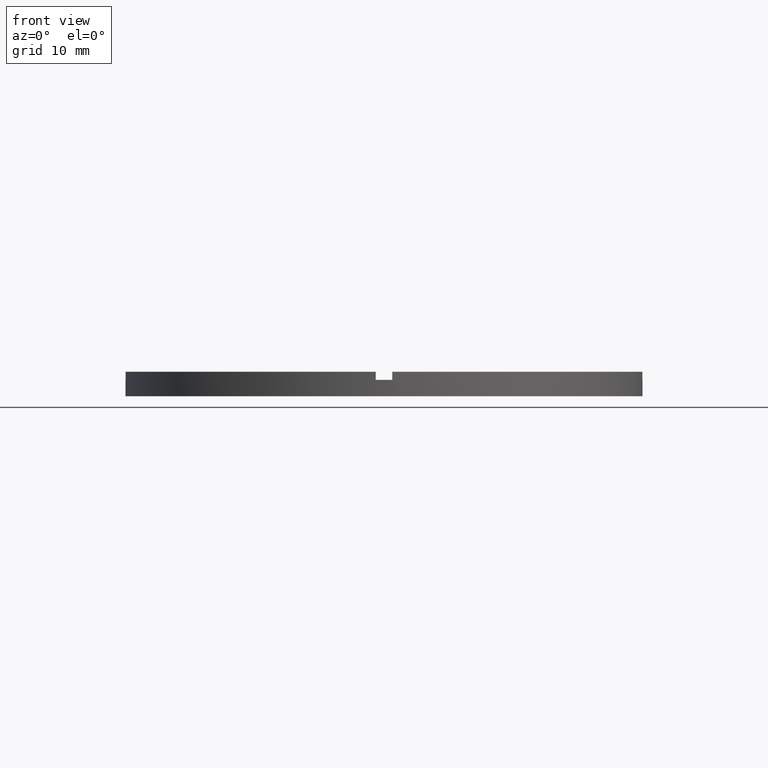
[diagram: clean part render]
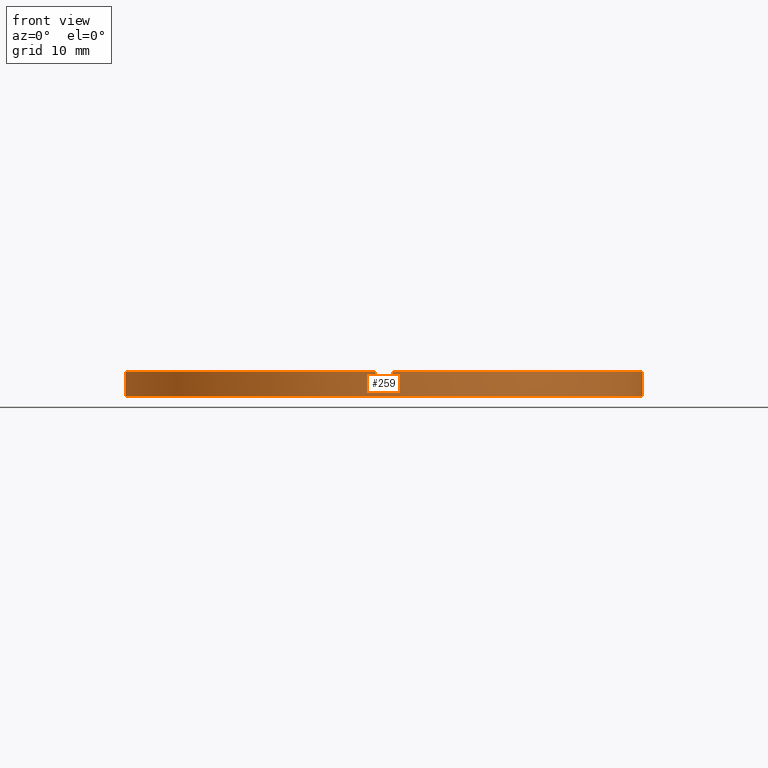
[diagram: same view with one face highlighted and labeled with its STEP entity id]
A machine part, front view. The second image highlights one B-rep face of the part: STEP entity #259.
In plain terms, the highlighted cylindrical surface (partial cylindrical patch) has radius 31.5 mm, axis along (-0, -0, -1).
Its self-contained STEP definition (entity closure, byte-faithful):
#5 = CARTESIAN_POINT ( 'NONE',  ( 0.000000000000000000, 0.000000000000000000, 3.000000000000000000 ) ) ;
#6 = VERTEX_POINT ( 'NONE', #61 ) ;
#10 = AXIS2_PLACEMENT_3D ( 'NONE', #551, #651, #600 ) ;
#26 = ORIENTED_EDGE ( 'NONE', *, *, #323, .T. ) ;
#30 = CARTESIAN_POINT ( 'NONE',  ( 31.50000000000000000, 3.857637417314162689E-15, 3.000000000000000000 ) ) ;
#32 = EDGE_LOOP ( 'NONE', ( #280, #421, #26, #686, #472, #673, #662, #244, #536, #490, #548, #159 ) ) ;
#42 = VERTEX_POINT ( 'NONE', #262 ) ;
#47 = LINE ( 'NONE', #315, #203 ) ;
#56 = DIRECTION ( 'NONE',  ( 0.000000000000000000, 0.000000000000000000, 1.000000000000000000 ) ) ;
#61 = CARTESIAN_POINT ( 'NONE',  ( 31.50000000000000000, 3.857637417314162689E-15, 2.000000000000000000 ) ) ;
#74 = DIRECTION ( 'NONE',  ( 1.000000000000000000, 0.000000000000000000, 0.000000000000000000 ) ) ;
#77 = DIRECTION ( 'NONE',  ( 1.000000000000000000, 0.000000000000000000, 0.000000000000000000 ) ) ;
#86 = DIRECTION ( 'NONE',  ( 0.000000000000000000, 0.000000000000000000, 1.000000000000000000 ) ) ;
#87 = AXIS2_PLACEMENT_3D ( 'NONE', #5, #618, #624 ) ;
#93 = CARTESIAN_POINT ( 'NONE',  ( 0.9999999999998386846, -31.48412298286233479, 3.000000000000000000 ) ) ;
#102 = CARTESIAN_POINT ( 'NONE',  ( 31.48412298286232414, -1.000000000000158540, 3.000000000000000000 ) ) ;
#127 = EDGE_CURVE ( 'NONE', #699, #612, #349, .T. ) ;
#147 = VERTEX_POINT ( 'NONE', #199 ) ;
#148 = CIRCLE ( 'NONE', #476, 31.50000000000000000 ) ;
#156 = CARTESIAN_POINT ( 'NONE',  ( -1.000000000000161426, -31.48412298286232414, 3.000000000000000000 ) ) ;
#159 = ORIENTED_EDGE ( 'NONE', *, *, #575, .T. ) ;
#163 = DIRECTION ( 'NONE',  ( 1.000000000000000000, 0.000000000000000000, 0.000000000000000000 ) ) ;
#165 = CIRCLE ( 'NONE', #625, 31.50000000000000000 ) ;
#168 = VECTOR ( 'NONE', #488, 1000.000000000000000 ) ;
#172 = LINE ( 'NONE', #93, #660 ) ;
#176 = VERTEX_POINT ( 'NONE', #248 ) ;
#177 = CARTESIAN_POINT ( 'NONE',  ( -31.50000000000000000, 0.000000000000000000, 3.000000000000000000 ) ) ;
#199 = CARTESIAN_POINT ( 'NONE',  ( 0.9999999999998386846, -31.48412298286233479, 3.000000000000000000 ) ) ;
#203 = VECTOR ( 'NONE', #317, 1000.000000000000000 ) ;
#217 = CARTESIAN_POINT ( 'NONE',  ( 31.48412298286232414, -1.000000000000158540, 3.000000000000000000 ) ) ;
#224 = CARTESIAN_POINT ( 'NONE',  ( -31.50000000000000000, 0.000000000000000000, 2.000000000000000000 ) ) ;
#226 = DIRECTION ( 'NONE',  ( 0.000000000000000000, 0.000000000000000000, 1.000000000000000000 ) ) ;
#232 = EDGE_CURVE ( 'NONE', #257, #42, #47, .T. ) ;
#244 = ORIENTED_EDGE ( 'NONE', *, *, #375, .F. ) ;
#248 = CARTESIAN_POINT ( 'NONE',  ( 31.50000000000000000, 3.857637417314162689E-15, 0.000000000000000000 ) ) ;
#257 = VERTEX_POINT ( 'NONE', #494 ) ;
#259 = ADVANCED_FACE ( 'NONE', ( #764 ), #768, .T. ) ;
#262 = CARTESIAN_POINT ( 'NONE',  ( -31.48412298286233124, -1.000000000000025757, 2.000000000000000000 ) ) ;
#278 = VERTEX_POINT ( 'NONE', #217 ) ;
#280 = ORIENTED_EDGE ( 'NONE', *, *, #500, .F. ) ;
#315 = CARTESIAN_POINT ( 'NONE',  ( -31.48412298286233124, -1.000000000000025757, 3.000000000000000000 ) ) ;
#317 = DIRECTION ( 'NONE',  ( -0.000000000000000000, -0.000000000000000000, -1.000000000000000000 ) ) ;
#323 = EDGE_CURVE ( 'NONE', #437, #278, #646, .T. ) ;
#325 = EDGE_CURVE ( 'NONE', #147, #695, #172, .T. ) ;
#327 = DIRECTION ( 'NONE',  ( 0.000000000000000000, 0.000000000000000000, 1.000000000000000000 ) ) ;
#329 = AXIS2_PLACEMENT_3D ( 'NONE', #579, #56, #163 ) ;
#333 = CARTESIAN_POINT ( 'NONE',  ( 31.48412298286232414, -1.000000000000158540, 2.000000000000000000 ) ) ;
#349 = LINE ( 'NONE', #177, #740 ) ;
#350 = AXIS2_PLACEMENT_3D ( 'NONE', #615, #226, #519 ) ;
#375 = EDGE_CURVE ( 'NONE', #257, #514, #432, .T. ) ;
#394 = CIRCLE ( 'NONE', #329, 31.50000000000000000 ) ;
#413 = CIRCLE ( 'NONE', #350, 31.50000000000000000 ) ;
#421 = ORIENTED_EDGE ( 'NONE', *, *, #545, .F. ) ;
#432 = CIRCLE ( 'NONE', #87, 31.50000000000000000 ) ;
#437 = VERTEX_POINT ( 'NONE', #333 ) ;
#439 = LINE ( 'NONE', #30, #672 ) ;
#449 = CARTESIAN_POINT ( 'NONE',  ( -1.000000000000161426, -31.48412298286232414, 3.000000000000000000 ) ) ;
#457 = LINE ( 'NONE', #156, #708 ) ;
#472 = ORIENTED_EDGE ( 'NONE', *, *, #325, .T. ) ;
#476 = AXIS2_PLACEMENT_3D ( 'NONE', #512, #571, #677 ) ;
#488 = DIRECTION ( 'NONE',  ( 0.000000000000000000, 0.000000000000000000, 1.000000000000000000 ) ) ;
#490 = ORIENTED_EDGE ( 'NONE', *, *, #630, .F. ) ;
#491 = DIRECTION ( 'NONE',  ( -0.000000000000000000, -0.000000000000000000, -1.000000000000000000 ) ) ;
#494 = CARTESIAN_POINT ( 'NONE',  ( -31.48412298286233124, -1.000000000000025757, 3.000000000000000000 ) ) ;
#500 = EDGE_CURVE ( 'NONE', #6, #176, #439, .T. ) ;
#512 = CARTESIAN_POINT ( 'NONE',  ( 0.000000000000000000, 0.000000000000000000, 2.000000000000000000 ) ) ;
#514 = VERTEX_POINT ( 'NONE', #449 ) ;
#515 = EDGE_CURVE ( 'NONE', #147, #278, #413, .T. ) ;
#519 = DIRECTION ( 'NONE',  ( 1.000000000000000000, 0.000000000000000000, 0.000000000000000000 ) ) ;
#536 = ORIENTED_EDGE ( 'NONE', *, *, #232, .T. ) ;
#545 = EDGE_CURVE ( 'NONE', #437, #6, #165, .T. ) ;
#548 = ORIENTED_EDGE ( 'NONE', *, *, #127, .T. ) ;
#551 = CARTESIAN_POINT ( 'NONE',  ( 0.000000000000000000, 0.000000000000000000, 3.000000000000000000 ) ) ;
#571 = DIRECTION ( 'NONE',  ( -0.000000000000000000, 0.000000000000000000, 1.000000000000000000 ) ) ;
#575 = EDGE_CURVE ( 'NONE', #612, #176, #394, .T. ) ;
#577 = DIRECTION ( 'NONE',  ( -0.000000000000000000, -0.000000000000000000, -1.000000000000000000 ) ) ;
#578 = DIRECTION ( 'NONE',  ( 0.000000000000000000, 0.000000000000000000, 1.000000000000000000 ) ) ;
#579 = CARTESIAN_POINT ( 'NONE',  ( 0.000000000000000000, 0.000000000000000000, 0.000000000000000000 ) ) ;
#600 = DIRECTION ( 'NONE',  ( -1.000000000000000000, 0.000000000000000000, 0.000000000000000000 ) ) ;
#607 = CARTESIAN_POINT ( 'NONE',  ( -1.000000000000161426, -31.48412298286232414, 2.000000000000000000 ) ) ;
#612 = VERTEX_POINT ( 'NONE', #663 ) ;
#615 = CARTESIAN_POINT ( 'NONE',  ( 0.000000000000000000, 0.000000000000000000, 3.000000000000000000 ) ) ;
#618 = DIRECTION ( 'NONE',  ( 0.000000000000000000, 0.000000000000000000, 1.000000000000000000 ) ) ;
#624 = DIRECTION ( 'NONE',  ( 1.000000000000000000, 0.000000000000000000, 0.000000000000000000 ) ) ;
#625 = AXIS2_PLACEMENT_3D ( 'NONE', #751, #86, #74 ) ;
#630 = EDGE_CURVE ( 'NONE', #699, #42, #704, .T. ) ;
#646 = LINE ( 'NONE', #102, #168 ) ;
#651 = DIRECTION ( 'NONE',  ( -0.000000000000000000, -0.000000000000000000, -1.000000000000000000 ) ) ;
#660 = VECTOR ( 'NONE', #687, 1000.000000000000000 ) ;
#661 = AXIS2_PLACEMENT_3D ( 'NONE', #688, #327, #77 ) ;
#662 = ORIENTED_EDGE ( 'NONE', *, *, #765, .T. ) ;
#663 = CARTESIAN_POINT ( 'NONE',  ( -31.50000000000000000, 0.000000000000000000, 0.000000000000000000 ) ) ;
#670 = EDGE_CURVE ( 'NONE', #676, #695, #148, .T. ) ;
#672 = VECTOR ( 'NONE', #577, 1000.000000000000000 ) ;
#673 = ORIENTED_EDGE ( 'NONE', *, *, #670, .F. ) ;
#676 = VERTEX_POINT ( 'NONE', #607 ) ;
#677 = DIRECTION ( 'NONE',  ( 1.000000000000000000, 0.000000000000000000, 0.000000000000000000 ) ) ;
#686 = ORIENTED_EDGE ( 'NONE', *, *, #515, .F. ) ;
#687 = DIRECTION ( 'NONE',  ( -0.000000000000000000, -0.000000000000000000, -1.000000000000000000 ) ) ;
#688 = CARTESIAN_POINT ( 'NONE',  ( 0.000000000000000000, 0.000000000000000000, 2.000000000000000000 ) ) ;
#695 = VERTEX_POINT ( 'NONE', #747 ) ;
#699 = VERTEX_POINT ( 'NONE', #224 ) ;
#704 = CIRCLE ( 'NONE', #661, 31.50000000000000000 ) ;
#708 = VECTOR ( 'NONE', #578, 1000.000000000000000 ) ;
#740 = VECTOR ( 'NONE', #491, 1000.000000000000000 ) ;
#747 = CARTESIAN_POINT ( 'NONE',  ( 0.9999999999998386846, -31.48412298286233479, 2.000000000000000000 ) ) ;
#751 = CARTESIAN_POINT ( 'NONE',  ( 0.000000000000000000, 0.000000000000000000, 2.000000000000000000 ) ) ;
#764 = FACE_OUTER_BOUND ( 'NONE', #32, .T. ) ;
#765 = EDGE_CURVE ( 'NONE', #676, #514, #457, .T. ) ;
#768 = CYLINDRICAL_SURFACE ( 'NONE', #10, 31.50000000000000000 ) ;